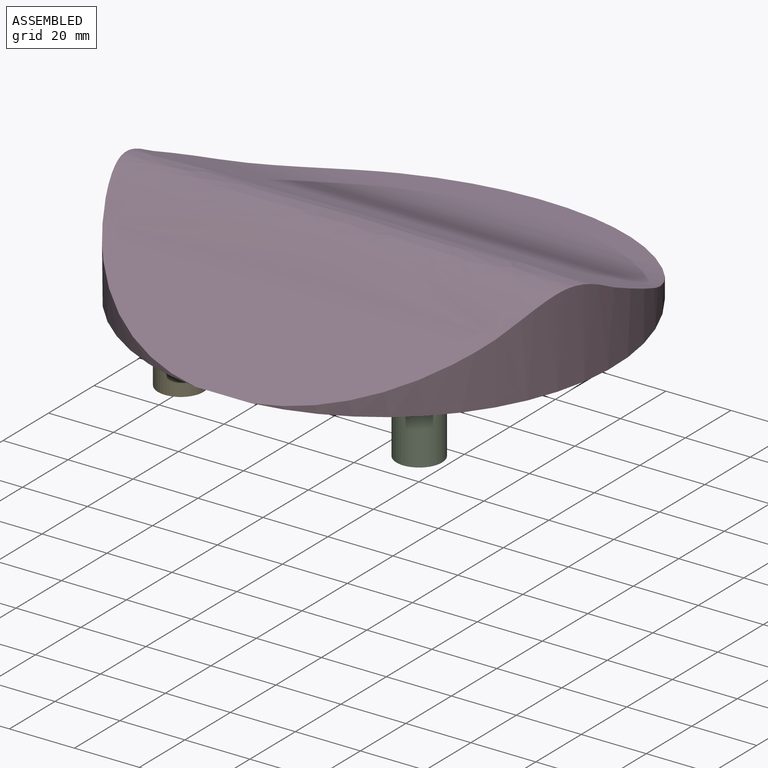
[diagram: assembled view]
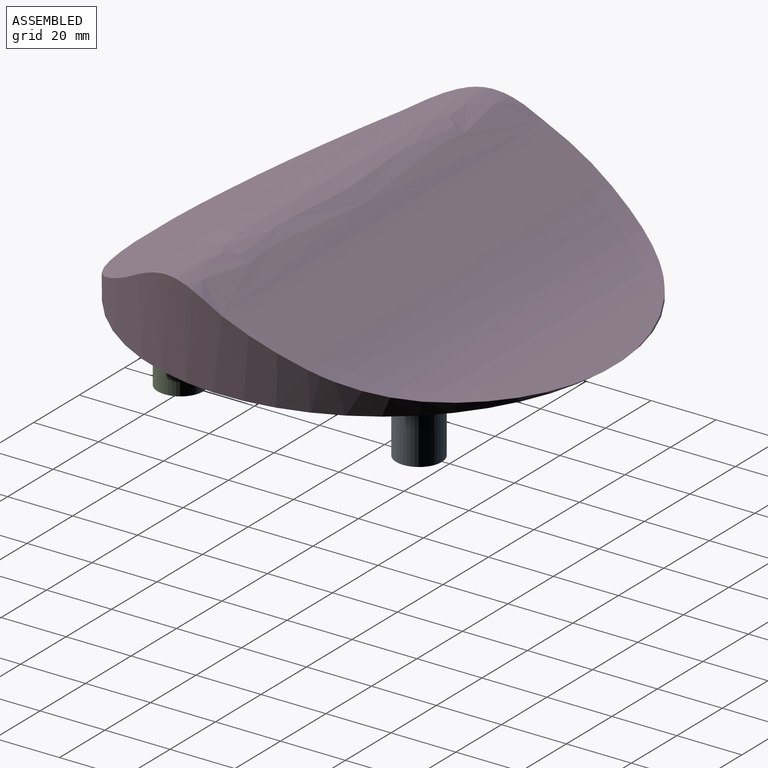
[diagram: assembled view, second angle]
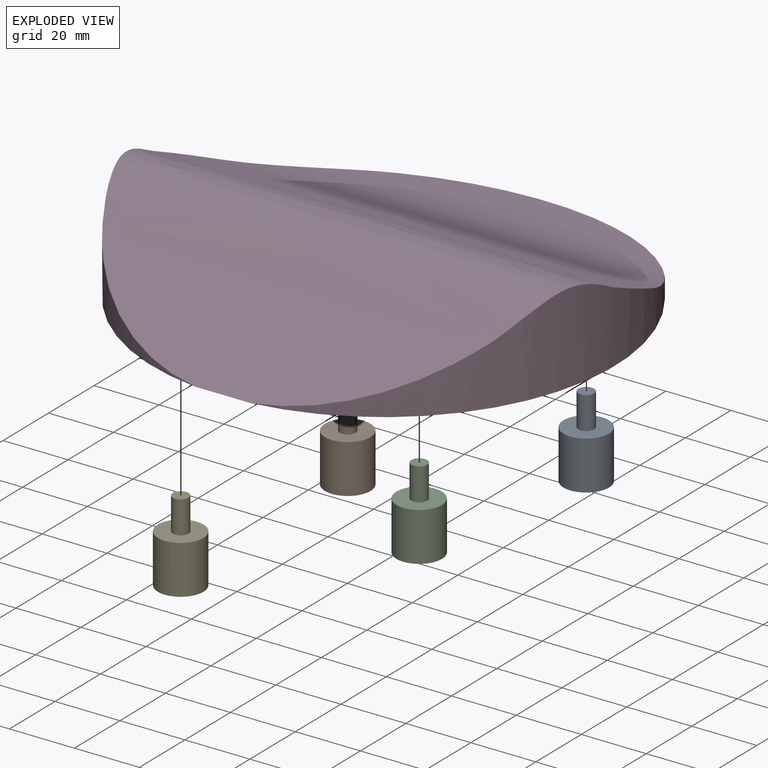
[diagram: exploded view]
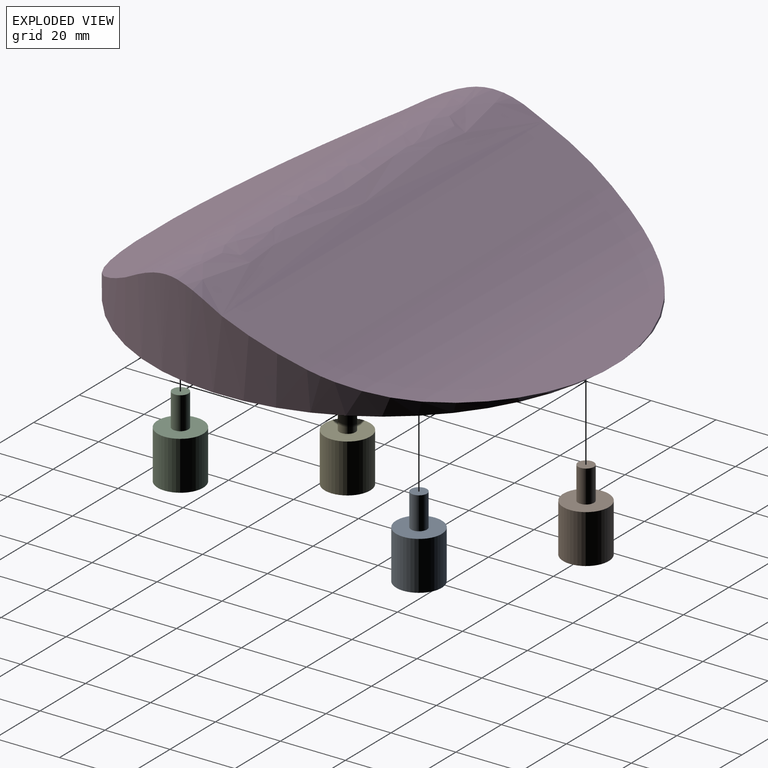
[diagram: exploded view, second angle]
ASSEMBLY  parts=5 mates=4
PART A: 5 faces, bbox 14x14x25 mm
  f0: cylinder r=2.45mm len=10mm, axis (0,0,-1), area 153.9mm2, adj f1,f3
  f1: plane 4.9x4.9mm, normal (0,0,1), area 18.9mm2, adj f0
  f2: cylinder r=7mm len=15mm, axis (0,0,-1), area 659.7mm2, adj f3,f4
  f3: plane 14x14mm, normal (0,0,1), area 135.1mm2, adj f0,f2
  f4: plane 14x14mm, normal (0,0,-1), area 153.9mm2, adj f2
PART B: same geometry as A
PART C: same geometry as A
PART D: 153 faces, bbox 141.9x141.4x27.7 mm
  f0: plane 141.93x141.43mm, normal (0,0,-1), area 15309.5mm2, adj f1,f5,f7,f9,f11,f13,f15,f16
  f1: cylinder r=70.97mm len=141.93mm, axis (0,0,-1), area 4235.4mm2, adj f0,f2,f3,f4,f5,f6
  f2: plane 91.24x16.6mm, normal (0,0.16,0.99), area 1049.8mm2, adj f1,f6
  f3: plane 141.93x23.44mm, normal (0,0.4,0.92), area 3561.1mm2, adj f1,f4,f6
  f4: extruded ~141.93x37.08mm, area 5444.2mm2, adj f1,f3,f5
  f5: plane 121.02x33.39mm, normal (0,-0.49,0.87), area 3322.6mm2, adj f0,f1,f4
  f6: cylinder r=129.34mm len=133.97mm, axis (1,0,0), area 3780.4mm2, adj f1,f2,f3
  f7: cylinder r=2.5mm len=5mm, axis (0,0,-1), area 78.5mm2, adj f0,f8
  f8: cone r=0mm half-angle=59deg, axis (0,0,-1), area 22.9mm2, adj f7
  f9: cylinder r=2.5mm len=5mm, axis (0,0,-1), area 78.5mm2, adj f0,f10
  f10: cone r=0mm half-angle=59deg, axis (0,0,-1), area 22.9mm2, adj f9
  f11: cylinder r=2.5mm len=5mm, axis (0,0,-1), area 78.5mm2, adj f0,f12
  f12: cone r=0mm half-angle=59deg, axis (0,0,-1), area 22.9mm2, adj f11
  f13: cylinder r=2.5mm len=5mm, axis (0,0,-1), area 78.5mm2, adj f0,f14
  f14: cone r=0mm half-angle=59deg, axis (0,0,-1), area 22.9mm2, adj f13
  f15: plane 1.93x1mm, normal (0,-1,0), area 1.9mm2, adj f0,f16,f24,f25
  f16: plane 10.9x4.14mm, normal (-0.93,-0.35,0), area 11.7mm2, adj f0,f15,f17,f25
  f17: plane 1.77x1mm, normal (0,1,0), area 1.8mm2, adj f0,f16,f18,f25
  f18: extruded ~7.23x2.61mm, area 7.7mm2, adj f0,f17,f19,f25
  f19: extruded ~2.18x1mm, area 2.3mm2, adj f0,f18,f20,f25
  f20: plane 1x0.08mm, normal (0,1,0), area 0.1mm2, adj f0,f19,f21,f25
  f21: extruded ~2.94x1mm, area 3.1mm2, adj f0,f20,f22,f25
  f22: plane 6.46x2.35mm, normal (-0.94,0.34,0), area 6.9mm2, adj f0,f21,f23,f25
  f23: plane 1.77x1mm, normal (0,1,0), area 1.8mm2, adj f0,f22,f24,f25
  f24: plane 10.9x4.14mm, normal (0.93,-0.35,0), area 11.7mm2, adj f0,f15,f23,f25
  f25: plane 10.9x10.2mm, normal (0,0,-1), area 35.3mm2, adj f15,f16,f17,f18,f19,f20,f21,f22
  f26: plane 1.23x1mm, normal (0,-1,0), area 1.2mm2, adj f0,f27,f52,f53
  f27: plane 7.44x1mm, normal (-1,0,0), area 7.4mm2, adj f0,f26,f28,f53
  f28: extruded ~2.77x1mm, area 3mm2, adj f0,f27,f29,f53
  f29: extruded ~2.89x1mm, area 3.1mm2, adj f0,f28,f30,f53
  f30: extruded ~1.93x1mm, area 1.9mm2, adj f0,f29,f31,f53
  f31: extruded ~1.76x1mm, area 1.9mm2, adj f0,f30,f32,f53
  f32: plane 1.26x1mm, normal (0.93,-0.37,0), area 1.4mm2, adj f0,f31,f33,f53
  f33: extruded ~3.08x1mm, area 3.2mm2, adj f0,f32,f34,f53
  f34: extruded ~1.77x1mm, area 1.9mm2, adj f0,f33,f35,f53
  f35: extruded ~1.89x1mm, area 2mm2, adj f0,f34,f36,f53
  f36: plane 1x0.68mm, normal (1,0,0), area 0.7mm2, adj f0,f35,f37,f53
  f37: plane 1.85x1mm, normal (0.03,1,0), area 1.8mm2, adj f0,f36,f38,f53
  f38: extruded ~5.28x3.46mm, area 7.1mm2, adj f0,f37,f39,f53
  f39: extruded ~2.38x1mm, area 2.6mm2, adj f0,f38,f40,f53
  f40: extruded ~2.54x1mm, area 2.7mm2, adj f0,f39,f41,f53
  f41: extruded ~2.03x1mm, area 2.1mm2, adj f0,f40,f42,f53
  f42: extruded ~1.62x1.39mm, area 2.2mm2, adj f0,f41,f43,f53
  f43: plane 1x0.08mm, normal (0,-1,0), area 0.1mm2, adj f0,f42,f52,f53
  f44: extruded ~1.51x1mm, area 1.6mm2, adj f45,f51,f53,f54
  f45: extruded ~1.36x1mm, area 1.5mm2, adj f44,f46,f53,f54
  f46: extruded ~1.69x1mm, area 2mm2, adj f45,f47,f53,f54
  f47: extruded ~2.84x1mm, area 2.9mm2, adj f46,f48,f53,f54
  f48: plane 1.65x1mm, normal (-0.04,-1,0), area 1.7mm2, adj f47,f49,f53,f54
  f49: plane 1x0.98mm, normal (1,0,0), area 1mm2, adj f48,f50,f53,f54
  f50: extruded ~2.37x1mm, area 2.6mm2, adj f49,f51,f53,f54
  f51: extruded ~2.42x1mm, area 2.6mm2, adj f44,f50,f53,f54
  f52: plane 1.55x1mm, normal (0.98,-0.21,0), area 1.6mm2, adj f0,f26,f43,f53
  f53: plane 11.28x8.74mm, normal (0,0,-1), area 46.5mm2, adj f26,f27,f28,f29,f30,f31,f32,f33
  f54: plane 5.36x4.19mm, normal (0,0,-1), area 18.1mm2, adj f44,f45,f46,f47,f48,f49,f50,f51
  f55: plane 1.46x1mm, normal (0.99,-0.15,0), area 1.5mm2, adj f0,f56,f78,f79
  f56: plane 1.34x1mm, normal (0,-1,0), area 1.3mm2, adj f0,f55,f57,f79
  f57: plane 15.48x1mm, normal (-1,0,0), area 15.5mm2, adj f0,f56,f58,f79
  f58: plane 1.65x1mm, normal (0,1,0), area 1.7mm2, adj f0,f57,f59,f79
  f59: plane 4.44x1mm, normal (1,0,0), area 4.4mm2, adj f0,f58,f60,f79
  f60: plane 1x0.77mm, normal (1,-0.05,0), area 0.8mm2, adj f0,f59,f61,f79
  f61: plane 1x0.79mm, normal (1,-0.09,0), area 0.8mm2, adj f0,f60,f62,f79
  f62: plane 1x0.13mm, normal (0,1,0), area 0.1mm2, adj f0,f61,f63,f79
  f63: extruded ~3.4x1.61mm, area 3.9mm2, adj f0,f62,f64,f79
  f64: extruded ~3.32x1.49mm, area 3.8mm2, adj f0,f63,f65,f79
  f65: extruded ~4.19x1.19mm, area 4.4mm2, adj f0,f64,f66,f79
  f66: extruded ~4.16x1.19mm, area 4.4mm2, adj f0,f65,f67,f79
  f67: extruded ~3.33x1.46mm, area 3.8mm2, adj f0,f66,f68,f79
  f68: extruded ~3.42x1.66mm, area 4mm2, adj f0,f67,f78,f79
  f69: extruded ~2.25x1.06mm, area 2.6mm2, adj f70,f77,f79,f80
  f70: extruded ~3.15x1mm, area 3.3mm2, adj f69,f71,f79,f80
  f71: extruded ~3.19x1mm, area 3.3mm2, adj f70,f72,f79,f80
  f72: extruded ~2.22x1.13mm, area 2.6mm2, adj f71,f73,f79,f80
  f73: extruded ~2.46x1mm, area 2.7mm2, adj f72,f74,f79,f80
  f74: extruded ~3.31x1mm, area 3.5mm2, adj f73,f75,f79,f80
  f75: plane 1x0.35mm, normal (1,0,0), area 0.3mm2, adj f74,f76,f79,f80
  f76: extruded ~2.97x1mm, area 3.1mm2, adj f75,f77,f79,f80
  f77: extruded ~2.45x1mm, area 2.7mm2, adj f69,f76,f79,f80
  f78: plane 1x0.09mm, normal (0,-1,0), area 0.1mm2, adj f0,f55,f68,f79
  f79: plane 15.68x9.59mm, normal (0,0,-1), area 57.9mm2, adj f55,f56,f57,f58,f59,f60,f61,f62
  f80: plane 8.53x6.22mm, normal (0,0,-1), area 44.7mm2, adj f69,f70,f71,f72,f73,f74,f75,f76
  f81: plane 1.23x1mm, normal (0,-1,0), area 1.2mm2, adj f0,f82,f107,f108
  f82: plane 7.44x1mm, normal (-1,0,0), area 7.4mm2, adj f0,f81,f83,f108
  f83: extruded ~2.77x1mm, area 3mm2, adj f0,f82,f84,f108
  f84: extruded ~2.89x1mm, area 3.1mm2, adj f0,f83,f85,f108
  f85: extruded ~1.93x1mm, area 1.9mm2, adj f0,f84,f86,f108
  f86: extruded ~1.76x1mm, area 1.9mm2, adj f0,f85,f87,f108
  f87: plane 1.26x1mm, normal (0.93,-0.37,0), area 1.4mm2, adj f0,f86,f88,f108
  f88: extruded ~3.08x1mm, area 3.2mm2, adj f0,f87,f89,f108
  f89: extruded ~1.77x1mm, area 1.9mm2, adj f0,f88,f90,f108
  f90: extruded ~1.89x1mm, area 2mm2, adj f0,f89,f91,f108
  f91: plane 1x0.68mm, normal (1,0,0), area 0.7mm2, adj f0,f90,f92,f108
  f92: plane 1.85x1mm, normal (0.03,1,0), area 1.8mm2, adj f0,f91,f93,f108
  f93: extruded ~5.28x3.46mm, area 7.1mm2, adj f0,f92,f94,f108
  f94: extruded ~2.38x1mm, area 2.6mm2, adj f0,f93,f95,f108
  f95: extruded ~2.54x1mm, area 2.7mm2, adj f0,f94,f96,f108
  f96: extruded ~2.03x1mm, area 2.1mm2, adj f0,f95,f97,f108
  f97: extruded ~1.62x1.39mm, area 2.2mm2, adj f0,f96,f98,f108
  f98: plane 1x0.08mm, normal (0,-1,0), area 0.1mm2, adj f0,f97,f107,f108
  f99: extruded ~1.51x1mm, area 1.6mm2, adj f100,f106,f108,f109
  f100: extruded ~1.36x1mm, area 1.5mm2, adj f99,f101,f108,f109
  f101: extruded ~1.69x1mm, area 2mm2, adj f100,f102,f108,f109
  f102: extruded ~2.84x1mm, area 2.9mm2, adj f101,f103,f108,f109
  f103: plane 1.65x1mm, normal (-0.04,-1,0), area 1.7mm2, adj f102,f104,f108,f109
  f104: plane 1x0.98mm, normal (1,0,0), area 1mm2, adj f103,f105,f108,f109
  f105: extruded ~2.37x1mm, area 2.6mm2, adj f104,f106,f108,f109
  f106: extruded ~2.42x1mm, area 2.6mm2, adj f99,f105,f108,f109
  f107: plane 1.55x1mm, normal (0.98,-0.21,0), area 1.6mm2, adj f0,f81,f98,f108
  f108: plane 11.28x8.74mm, normal (0,0,-1), area 46.5mm2, adj f81,f82,f83,f84,f85,f86,f87,f88
  f109: plane 5.36x4.19mm, normal (0,0,-1), area 18.1mm2, adj f99,f100,f101,f102,f103,f104,f105,f106
  f110: plane 3.04x1mm, normal (0,-1,0), area 3mm2, adj f0,f111,f127,f128
  f111: plane 6.05x3.52mm, normal (0.86,-0.5,0), area 7mm2, adj f0,f110,f112,f128
  f112: plane 2x1mm, normal (0,-1,0), area 2mm2, adj f0,f111,f113,f128
  f113: plane 6.53x3.95mm, normal (-0.86,0.52,0), area 7.6mm2, adj f0,f112,f114,f128
  f114: extruded ~3.9x2.92mm, area 5.3mm2, adj f0,f113,f115,f128
  f115: extruded ~3.08x1.28mm, area 3.5mm2, adj f0,f114,f116,f128
  f116: extruded ~3.95x1.02mm, area 4.2mm2, adj f0,f115,f117,f128
  f117: plane 3.99x1mm, normal (0,1,0), area 4mm2, adj f0,f116,f118,f128
  f118: plane 14.54x1mm, normal (1,0,0), area 14.5mm2, adj f0,f117,f119,f128
  f119: plane 1.69x1mm, normal (0,-1,0), area 1.7mm2, adj f0,f118,f127,f128
  f120: plane 5.56x1mm, normal (-1,0,0), area 5.6mm2, adj f121,f126,f128,f129
  f121: plane 2.2x1mm, normal (0,-1,0), area 2.2mm2, adj f120,f122,f128,f129
  f122: extruded ~2.73x1mm, area 2.8mm2, adj f121,f123,f128,f129
  f123: extruded ~2.08x1mm, area 2.3mm2, adj f122,f124,f128,f129
  f124: extruded ~2.13x1mm, area 2.4mm2, adj f123,f125,f128,f129
  f125: extruded ~2.62x1mm, area 2.8mm2, adj f124,f126,f128,f129
  f126: plane 2.32x1mm, normal (0,1,0), area 2.3mm2, adj f120,f125,f128,f129
  f127: plane 6.05x1mm, normal (-1,0,0), area 6mm2, adj f0,f110,f119,f128
  f128: plane 14.54x10.24mm, normal (0,0,-1), area 63.4mm2, adj f110,f111,f112,f113,f114,f115,f116,f117
  f129: plane 5.78x5.56mm, normal (0,0,-1), area 29mm2, adj f120,f121,f122,f123,f124,f125,f126
  f130: plane 15.48x1mm, normal (-1,0,0), area 15.5mm2, adj f0,f131,f133,f134
  f131: plane 1.65x1mm, normal (0,1,0), area 1.7mm2, adj f0,f130,f132,f134
  f132: plane 15.48x1mm, normal (1,0,0), area 15.5mm2, adj f0,f131,f133,f134
  f133: plane 1.65x1mm, normal (0,-1,0), area 1.7mm2, adj f0,f130,f132,f134
  f134: plane 15.48x1.65mm, normal (0,0,-1), area 25.6mm2, adj f130,f131,f132,f133
  f135: plane 1.65x1mm, normal (0,-1,0), area 1.7mm2, adj f0,f136,f151,f152
  f136: plane 7.11x1mm, normal (-1,0,0), area 7.1mm2, adj f0,f135,f137,f152
  f137: extruded ~3.04x1mm, area 3.3mm2, adj f0,f136,f138,f152
  f138: extruded ~2.96x1mm, area 3.2mm2, adj f0,f137,f139,f152
  f139: extruded ~2.04x1mm, area 2.1mm2, adj f0,f138,f140,f152
  f140: extruded ~1.42x1.25mm, area 1.9mm2, adj f0,f139,f141,f152
  f141: plane 1x0.08mm, normal (0,1,0), area 0.1mm2, adj f0,f140,f142,f152
  f142: plane 1.49x1mm, normal (-0.98,0.18,0), area 1.5mm2, adj f0,f141,f143,f152
  f143: plane 1.34x1mm, normal (0,1,0), area 1.3mm2, adj f0,f142,f144,f152
  f144: plane 10.9x1mm, normal (1,0,0), area 10.9mm2, adj f0,f143,f145,f152
  f145: plane 1.65x1mm, normal (0,-1,0), area 1.7mm2, adj f0,f144,f146,f152
  f146: plane 5.72x1mm, normal (-1,0,0), area 5.7mm2, adj f0,f145,f147,f152
  f147: extruded ~3.05x1mm, area 3.2mm2, adj f0,f146,f148,f152
  f148: extruded ~2.5x1mm, area 2.8mm2, adj f0,f147,f149,f152
  f149: extruded ~1.9x1mm, area 2.1mm2, adj f0,f148,f150,f152
  f150: extruded ~1.99x1mm, area 2.1mm2, adj f0,f149,f151,f152
  f151: plane 7.05x1mm, normal (1,0,0), area 7.1mm2, adj f0,f135,f150,f152
  f152: plane 11.1x9.11mm, normal (0,0,-1), area 43.1mm2, adj f135,f136,f137,f138,f139,f140,f141,f142
PART E: same geometry as A
PLACE A t=(73.43,40.96,12.86)mm
PLACE B t=(0,40.96,12.86)mm
PLACE C t=(73.43,-32.47,12.86)mm
PLACE D t=(-93.31,46.31,32.86)mm
PLACE E t=(0,-32.47,12.86)mm
MATE pin_slot C.f0 <-> D.f7  axis (0,0,1) through (-56.6,9.6,37.86)mm
MATE pin_slot B.f0 <-> D.f11  axis (0,0,1) through (-130.02,83.02,37.86)mm
MATE pin_slot A.f0 <-> D.f9  axis (0,0,-1) through (-56.6,83.02,37.86)mm
MATE pin_slot D.f13 <-> E.f0  axis (0,0,-1) through (-130.02,9.6,32.86)mm
